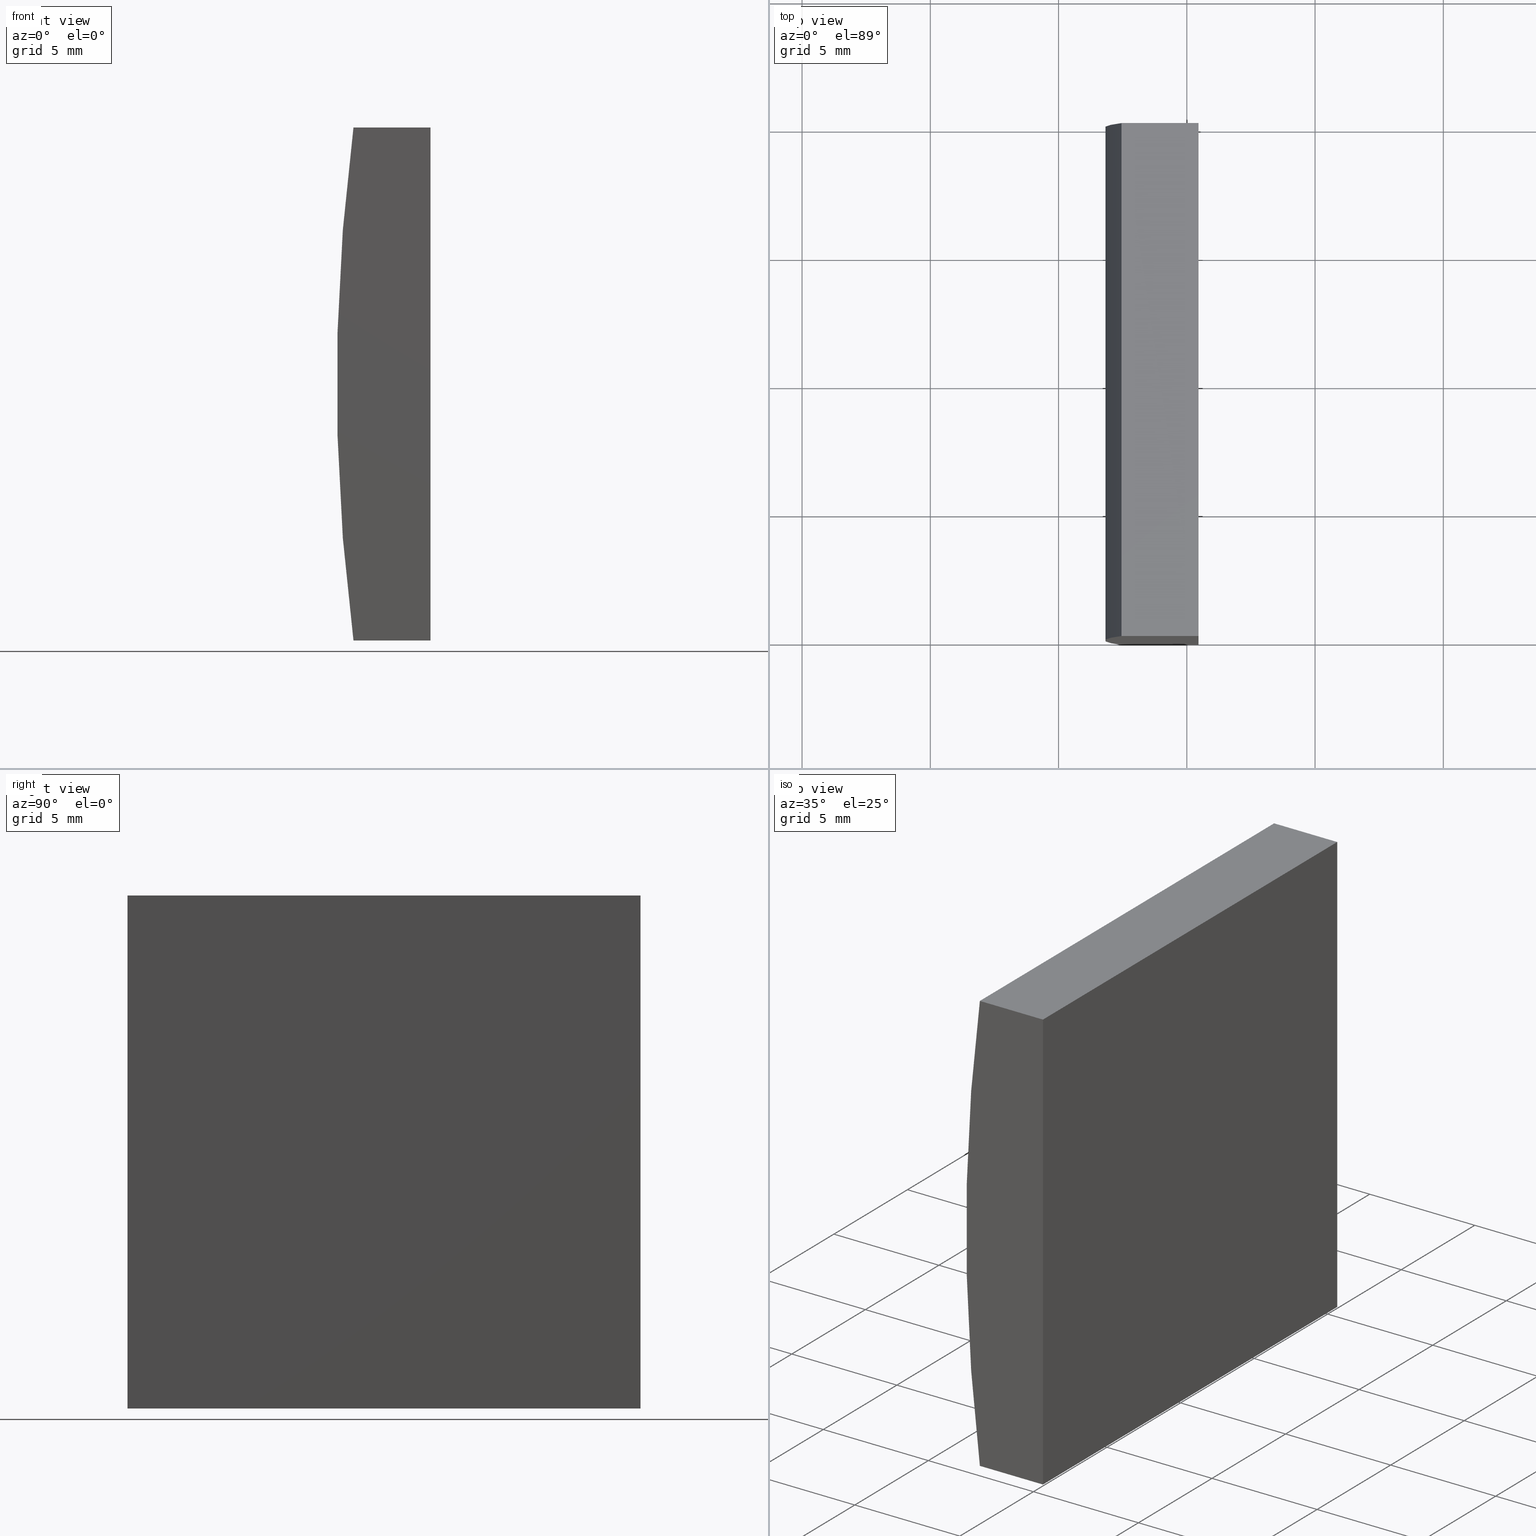
[diagram: canonical four-view strip — front | top / right | iso, engineering-drawing reading convention]
A machine part, canonical four-view strip (front | top / right | iso — engineering-drawing reading convention). The complete STEP part file that produces these views, byte-faithful:
ISO-10303-21;
HEADER;
FILE_DESCRIPTION (( 'STEP AP214' ),
    '1' );
FILE_NAME ('155032.STEP',
    '2019-06-17T06:51:27',
    ( 'user' ),
    ( '΢���й�' ),
    'SwSTEP 2.0',
    'SolidWorks 2016',
    '' );
FILE_SCHEMA (( 'AUTOMOTIVE_DESIGN' ));
ENDSEC;

DATA;
#1 = PRODUCT_RELATED_PRODUCT_CATEGORY ( 'part', '', ( #151 ) ) ;
#2 = VECTOR ( 'NONE', #24, 1000.000000000000000 ) ;
#3 = VECTOR ( 'NONE', #100, 1000.000000000000000 ) ;
#4 = ADVANCED_FACE ( 'NONE', ( #135 ), #42, .F. ) ;
#5 = EDGE_LOOP ( 'NONE', ( #43, #118, #117, #67 ) ) ;
#6 = DIRECTION ( 'NONE',  ( -1.000000000000000000, -0.0000000000000000000, 1.155499382808803800E-015 ) ) ;
#7 = PRODUCT_DEFINITION_FORMATION_WITH_SPECIFIED_SOURCE ( '�κ�', '', #151, .NOT_KNOWN. ) ;
#8 = LINE ( 'NONE', #183, #63 ) ;
#9 = DIRECTION ( 'NONE',  ( -1.000000000000000000, 0.0000000000000000000, -0.0000000000000000000 ) ) ;
#10 = UNCERTAINTY_MEASURE_WITH_UNIT (LENGTH_MEASURE( 1.000000000000000100E-005 ), #108, 'distance_accuracy_value', 'NONE');
#11 = CARTESIAN_POINT ( 'NONE',  ( -69.54479566514874000, 20.00000000000000000, -10.00000000000000400 ) ) ;
#12 = LINE ( 'NONE', #13, #144 ) ;
#13 = CARTESIAN_POINT ( 'NONE',  ( -72.54734763840902200, 0.0000000000000000000, -10.00000000000000000 ) ) ;
#14 = CARTESIAN_POINT ( 'NONE',  ( -72.54734763840902200, 0.0000000000000000000, -10.00000000000000000 ) ) ;
#15 = EDGE_CURVE ( 'NONE', #197, #113, #120, .T. ) ;
#16 = PRESENTATION_STYLE_ASSIGNMENT (( #25 ) ) ;
#17 = CLOSED_SHELL ( 'NONE', ( #168, #4, #20, #97, #115, #95 ) ) ;
#18 = PRODUCT_DEFINITION ( 'δ֪', '', #7, #171 ) ;
#19 =( GEOMETRIC_REPRESENTATION_CONTEXT ( 3 ) GLOBAL_UNCERTAINTY_ASSIGNED_CONTEXT ( ( #52 ) ) GLOBAL_UNIT_ASSIGNED_CONTEXT ( ( #65, #71, #74 ) ) REPRESENTATION_CONTEXT ( 'NONE', 'WORKASPACE' ) );
#20 = ADVANCED_FACE ( 'NONE', ( #188 ), #48, .F. ) ;
#21 = PLANE ( 'NONE',  #98 ) ;
#22 = CARTESIAN_POINT ( 'NONE',  ( -72.54734763840902200, 20.00000000000000000, 10.00000000000000000 ) ) ;
#23 = DIRECTION ( 'NONE',  ( 0.0000000000000000000, 0.0000000000000000000, -1.000000000000000000 ) ) ;
#24 = DIRECTION ( 'NONE',  ( 1.000000000000000000, 0.0000000000000000000, 0.0000000000000000000 ) ) ;
#25 = SURFACE_STYLE_USAGE ( .BOTH. , #203 ) ;
#26 = CARTESIAN_POINT ( 'NONE',  ( -69.54479566514874000, 0.0000000000000000000, 10.00000000000000000 ) ) ;
#27 = AXIS2_PLACEMENT_3D ( 'NONE', #101, #125, #130 ) ;
#28 =( NAMED_UNIT ( * ) SI_UNIT ( $, .STERADIAN. ) SOLID_ANGLE_UNIT ( ) );
#29 = ORIENTED_EDGE ( 'NONE', *, *, #134, .T. ) ;
#30 = ORIENTED_EDGE ( 'NONE', *, *, #164, .F. ) ;
#31 = SHAPE_DEFINITION_REPRESENTATION ( #137, #33 ) ;
#32 = ORIENTED_EDGE ( 'NONE', *, *, #128, .F. ) ;
#33 = ADVANCED_BREP_SHAPE_REPRESENTATION ( '155032', ( #133, #27 ), #19 ) ;
#34 = VERTEX_POINT ( 'NONE', #14 ) ;
#35 = CARTESIAN_POINT ( 'NONE',  ( -72.54734763840902200, 20.00000000000000000, 10.00000000000000000 ) ) ;
#36 = FACE_OUTER_BOUND ( 'NONE', #147, .T. ) ;
#37 =( GEOMETRIC_REPRESENTATION_CONTEXT ( 3 ) GLOBAL_UNCERTAINTY_ASSIGNED_CONTEXT ( ( #10 ) ) GLOBAL_UNIT_ASSIGNED_CONTEXT ( ( #108, #109, #116 ) ) REPRESENTATION_CONTEXT ( 'NONE', 'WORKASPACE' ) );
#38 = ORIENTED_EDGE ( 'NONE', *, *, #94, .F. ) ;
#39 = DIRECTION ( 'NONE',  ( 0.0000000000000000000, -0.0000000000000000000, 1.000000000000000000 ) ) ;
#40 = CARTESIAN_POINT ( 'NONE',  ( -72.54734763840902200, 0.0000000000000000000, 10.00000000000000000 ) ) ;
#41 = MECHANICAL_DESIGN_GEOMETRIC_PRESENTATION_REPRESENTATION (  '', ( #54 ), #37 ) ;
#42 = PLANE ( 'NONE',  #165 ) ;
#43 = ORIENTED_EDGE ( 'NONE', *, *, #164, .T. ) ;
#44 = VERTEX_POINT ( 'NONE', #22 ) ;
#45 = DIRECTION ( 'NONE',  ( -1.000000000000000000, 0.0000000000000000000, 0.0000000000000000000 ) ) ;
#46 = DIRECTION ( 'NONE',  ( 1.000000000000000000, 0.0000000000000000000, 0.0000000000000000000 ) ) ;
#47 = PRESENTATION_STYLE_ASSIGNMENT (( #103 ) ) ;
#48 = PLANE ( 'NONE',  #187 ) ;
#49 = CARTESIAN_POINT ( 'NONE',  ( -72.54734763840902200, 20.00000000000000000, -10.00000000000000000 ) ) ;
#50 = PRESENTATION_LAYER_ASSIGNMENT (  '', '', ( #54 ) ) ;
#51 = DIRECTION ( 'NONE',  ( 0.0000000000000000000, 0.0000000000000000000, 1.000000000000000000 ) ) ;
#52 = UNCERTAINTY_MEASURE_WITH_UNIT (LENGTH_MEASURE( 1.000000000000000100E-005 ), #65, 'distance_accuracy_value', 'NONE');
#53 = COLOUR_RGB ( '',1.000000000000000000, 1.000000000000000000, 1.000000000000000000 ) ;
#54 = STYLED_ITEM ( 'NONE', ( #47 ), #33 ) ;
#55 = FACE_OUTER_BOUND ( 'NONE', #73, .T. ) ;
#56 = CARTESIAN_POINT ( 'NONE',  ( -69.54479566514874000, 20.00000000000000000, -10.00000000000000400 ) ) ;
#57 = FILL_AREA_STYLE_COLOUR ( '', #143 ) ;
#58 = DIRECTION ( 'NONE',  ( -1.000000000000000000, -0.0000000000000000000, 1.155499382808803800E-015 ) ) ;
#59 = CARTESIAN_POINT ( 'NONE',  ( -72.54734763840902200, 0.0000000000000000000, 10.00000000000000000 ) ) ;
#60 = CIRCLE ( 'NONE', #68, 77.54999999999999700 ) ;
#61 = FILL_AREA_STYLE ('',( #75 ) ) ;
#62 = AXIS2_PLACEMENT_3D ( 'NONE', #201, #70, #138 ) ;
#63 = VECTOR ( 'NONE', #110, 1000.000000000000000 ) ;
#64 = CARTESIAN_POINT ( 'NONE',  ( 4.355204334851265500, 0.0000000000000000000, 4.286263797015675000E-017 ) ) ;
#65 =( LENGTH_UNIT ( ) NAMED_UNIT ( * ) SI_UNIT ( .MILLI., .METRE. ) );
#66 = AXIS2_PLACEMENT_3D ( 'NONE', #146, #148, #140 ) ;
#67 = ORIENTED_EDGE ( 'NONE', *, *, #128, .T. ) ;
#68 = AXIS2_PLACEMENT_3D ( 'NONE', #64, #72, #129 ) ;
#69 = LINE ( 'NONE', #194, #186 ) ;
#70 = DIRECTION ( 'NONE',  ( -0.0000000000000000000, -1.000000000000000000, -0.0000000000000000000 ) ) ;
#71 =( NAMED_UNIT ( * ) PLANE_ANGLE_UNIT ( ) SI_UNIT ( $, .RADIAN. ) );
#72 = DIRECTION ( 'NONE',  ( 0.0000000000000000000, 1.000000000000000000, 0.0000000000000000000 ) ) ;
#73 = EDGE_LOOP ( 'NONE', ( #172, #106, #32, #182 ) ) ;
#74 =( NAMED_UNIT ( * ) SI_UNIT ( $, .STERADIAN. ) SOLID_ANGLE_UNIT ( ) );
#75 = FILL_AREA_STYLE_COLOUR ( '', #53 ) ;
#76 = CARTESIAN_POINT ( 'NONE',  ( 4.355204334851265500, 0.0000000000000000000, 4.286263797015675000E-017 ) ) ;
#77 = APPLICATION_PROTOCOL_DEFINITION ( 'draft international standard', 'automotive_design', 1998, #84 ) ;
#78 = UNCERTAINTY_MEASURE_WITH_UNIT (LENGTH_MEASURE( 1.000000000000000100E-005 ), #155, 'distance_accuracy_value', 'NONE');
#79 = VERTEX_POINT ( 'NONE', #92 ) ;
#80 = ORIENTED_EDGE ( 'NONE', *, *, #15, .F. ) ;
#81 = VECTOR ( 'NONE', #6, 1000.000000000000000 ) ;
#82 = VECTOR ( 'NONE', #124, 1000.000000000000000 ) ;
#83 = CARTESIAN_POINT ( 'NONE',  ( -69.54479566514874000, 0.0000000000000000000, -10.00000000000000400 ) ) ;
#84 = APPLICATION_CONTEXT ( 'automotive_design' ) ;
#85 = EDGE_CURVE ( 'NONE', #79, #190, #162, .T. ) ;
#86 = FILL_AREA_STYLE ('',( #57 ) ) ;
#87 = SURFACE_SIDE_STYLE ('',( #149 ) ) ;
#88 = EDGE_LOOP ( 'NONE', ( #139, #195, #99, #122 ) ) ;
#89 = EDGE_LOOP ( 'NONE', ( #29, #167, #132, #96 ) ) ;
#90 = LINE ( 'NONE', #180, #81 ) ;
#91 = ORIENTED_EDGE ( 'NONE', *, *, #169, .T. ) ;
#92 = CARTESIAN_POINT ( 'NONE',  ( -69.54479566514874000, 20.00000000000000000, 10.00000000000000000 ) ) ;
#93 = CIRCLE ( 'NONE', #66, 77.54999999999999700 ) ;
#94 = EDGE_CURVE ( 'NONE', #44, #197, #158, .T. ) ;
#95 = ADVANCED_FACE ( 'NONE', ( #204 ), #156, .F. ) ;
#96 = ORIENTED_EDGE ( 'NONE', *, *, #191, .T. ) ;
#97 = ADVANCED_FACE ( 'NONE', ( #55 ), #21, .F. ) ;
#98 = AXIS2_PLACEMENT_3D ( 'NONE', #153, #107, #173 ) ;
#99 = ORIENTED_EDGE ( 'NONE', *, *, #178, .F. ) ;
#100 = DIRECTION ( 'NONE',  ( -0.0000000000000000000, -0.0000000000000000000, -1.000000000000000000 ) ) ;
#101 = CARTESIAN_POINT ( 'NONE',  ( 0.0000000000000000000, 0.0000000000000000000, 0.0000000000000000000 ) ) ;
#102 = DIRECTION ( 'NONE',  ( -0.0000000000000000000, -1.000000000000000000, -0.0000000000000000000 ) ) ;
#103 = SURFACE_STYLE_USAGE ( .BOTH. , #87 ) ;
#104 = LINE ( 'NONE', #196, #176 ) ;
#105 = ORIENTED_EDGE ( 'NONE', *, *, #159, .T. ) ;
#106 = ORIENTED_EDGE ( 'NONE', *, *, #159, .F. ) ;
#107 = DIRECTION ( 'NONE',  ( 1.155499382808803800E-015, -0.0000000000000000000, 1.000000000000000000 ) ) ;
#108 =( LENGTH_UNIT ( ) NAMED_UNIT ( * ) SI_UNIT ( .MILLI., .METRE. ) );
#109 =( NAMED_UNIT ( * ) PLANE_ANGLE_UNIT ( ) SI_UNIT ( $, .RADIAN. ) );
#110 = DIRECTION ( 'NONE',  ( -0.0000000000000000000, -1.000000000000000000, -0.0000000000000000000 ) ) ;
#111 =( NAMED_UNIT ( * ) PLANE_ANGLE_UNIT ( ) SI_UNIT ( $, .RADIAN. ) );
#112 = SURFACE_STYLE_FILL_AREA ( #61 ) ;
#113 = VERTEX_POINT ( 'NONE', #26 ) ;
#114 = EDGE_CURVE ( 'NONE', #190, #157, #104, .T. ) ;
#115 = ADVANCED_FACE ( 'NONE', ( #121 ), #174, .T. ) ;
#116 =( NAMED_UNIT ( * ) SI_UNIT ( $, .STERADIAN. ) SOLID_ANGLE_UNIT ( ) );
#117 = ORIENTED_EDGE ( 'NONE', *, *, #85, .T. ) ;
#118 = ORIENTED_EDGE ( 'NONE', *, *, #178, .T. ) ;
#119 = VECTOR ( 'NONE', #102, 1000.000000000000000 ) ;
#120 = LINE ( 'NONE', #40, #160 ) ;
#121 = FACE_OUTER_BOUND ( 'NONE', #5, .T. ) ;
#122 = ORIENTED_EDGE ( 'NONE', *, *, #94, .T. ) ;
#123 = CARTESIAN_POINT ( 'NONE',  ( 4.355204334851265500, 20.00000000000000000, 4.286263797015675000E-017 ) ) ;
#124 = DIRECTION ( 'NONE',  ( -0.0000000000000000000, -1.000000000000000000, -0.0000000000000000000 ) ) ;
#125 = DIRECTION ( 'NONE',  ( 0.0000000000000000000, 0.0000000000000000000, 1.000000000000000000 ) ) ;
#126 = LINE ( 'NONE', #181, #2 ) ;
#127 = DIRECTION ( 'NONE',  ( 0.0000000000000000000, -0.0000000000000000000, 1.000000000000000000 ) ) ;
#128 = EDGE_CURVE ( 'NONE', #190, #189, #90, .T. ) ;
#129 = DIRECTION ( 'NONE',  ( 0.0000000000000000000, 0.0000000000000000000, 1.000000000000000000 ) ) ;
#130 = DIRECTION ( 'NONE',  ( 1.000000000000000000, 0.0000000000000000000, 0.0000000000000000000 ) ) ;
#131 = PRODUCT_CONTEXT ( 'NONE', #84, 'mechanical' ) ;
#132 = ORIENTED_EDGE ( 'NONE', *, *, #85, .F. ) ;
#133 = MANIFOLD_SOLID_BREP ( '͹̨-����1', #17 ) ;
#134 = EDGE_CURVE ( 'NONE', #113, #157, #69, .T. ) ;
#135 = FACE_OUTER_BOUND ( 'NONE', #88, .T. ) ;
#136 = MECHANICAL_DESIGN_GEOMETRIC_PRESENTATION_REPRESENTATION (  '', ( #154 ), #200 ) ;
#137 = PRODUCT_DEFINITION_SHAPE ( 'NONE', 'NONE',  #18 ) ;
#138 = DIRECTION ( 'NONE',  ( 0.0000000000000000000, 0.0000000000000000000, -1.000000000000000000 ) ) ;
#139 = ORIENTED_EDGE ( 'NONE', *, *, #15, .T. ) ;
#140 = DIRECTION ( 'NONE',  ( 0.0000000000000000000, 0.0000000000000000000, 1.000000000000000000 ) ) ;
#141 = AXIS2_PLACEMENT_3D ( 'NONE', #123, #193, #127 ) ;
#142 = APPLICATION_CONTEXT ( 'automotive_design' ) ;
#143 = COLOUR_RGB ( '',1.000000000000000000, 1.000000000000000000, 1.000000000000000000 ) ;
#144 = VECTOR ( 'NONE', #58, 1000.000000000000000 ) ;
#145 = APPLICATION_PROTOCOL_DEFINITION ( 'draft international standard', 'automotive_design', 1998, #142 ) ;
#146 = CARTESIAN_POINT ( 'NONE',  ( 4.355204334851265500, 20.00000000000000000, 4.286263797015675000E-017 ) ) ;
#147 = EDGE_LOOP ( 'NONE', ( #91, #38, #30, #105 ) ) ;
#148 = DIRECTION ( 'NONE',  ( 0.0000000000000000000, 1.000000000000000000, 0.0000000000000000000 ) ) ;
#149 = SURFACE_STYLE_FILL_AREA ( #86 ) ;
#150 = AXIS2_PLACEMENT_3D ( 'NONE', #76, #199, #39 ) ;
#151 = PRODUCT ( '155032', '155032', '', ( #131 ) ) ;
#152 = LINE ( 'NONE', #49, #82 ) ;
#153 = CARTESIAN_POINT ( 'NONE',  ( -72.54734763840902200, 20.00000000000000000, -10.00000000000000000 ) ) ;
#154 = STYLED_ITEM ( 'NONE', ( #16 ), #133 ) ;
#155 =( LENGTH_UNIT ( ) NAMED_UNIT ( * ) SI_UNIT ( .MILLI., .METRE. ) );
#156 = PLANE ( 'NONE',  #150 ) ;
#157 = VERTEX_POINT ( 'NONE', #83 ) ;
#158 = LINE ( 'NONE', #170, #119 ) ;
#159 = EDGE_CURVE ( 'NONE', #189, #34, #152, .T. ) ;
#160 = VECTOR ( 'NONE', #46, 1000.000000000000000 ) ;
#161 = ORIENTED_EDGE ( 'NONE', *, *, #192, .F. ) ;
#162 = LINE ( 'NONE', #56, #3 ) ;
#163 = EDGE_LOOP ( 'NONE', ( #177, #161, #179, #80 ) ) ;
#164 = EDGE_CURVE ( 'NONE', #189, #44, #93, .T. ) ;
#165 = AXIS2_PLACEMENT_3D ( 'NONE', #35, #23, #9 ) ;
#166 = CYLINDRICAL_SURFACE ( 'NONE', #62, 77.54999999999999700 ) ;
#167 = ORIENTED_EDGE ( 'NONE', *, *, #114, .F. ) ;
#168 = ADVANCED_FACE ( 'NONE', ( #36 ), #166, .T. ) ;
#169 = EDGE_CURVE ( 'NONE', #34, #197, #60, .T. ) ;
#170 = CARTESIAN_POINT ( 'NONE',  ( -72.54734763840902200, 20.00000000000000000, 10.00000000000000000 ) ) ;
#171 = PRODUCT_DEFINITION_CONTEXT ( 'detailed design', #142, 'design' ) ;
#172 = ORIENTED_EDGE ( 'NONE', *, *, #192, .T. ) ;
#173 = DIRECTION ( 'NONE',  ( 1.000000000000000000, 0.0000000000000000000, -1.155499382808803800E-015 ) ) ;
#174 = PLANE ( 'NONE',  #141 ) ;
#175 = PRESENTATION_LAYER_ASSIGNMENT (  '', '', ( #154 ) ) ;
#176 = VECTOR ( 'NONE', #198, 1000.000000000000000 ) ;
#177 = ORIENTED_EDGE ( 'NONE', *, *, #169, .F. ) ;
#178 = EDGE_CURVE ( 'NONE', #44, #79, #126, .T. ) ;
#179 = ORIENTED_EDGE ( 'NONE', *, *, #134, .F. ) ;
#180 = CARTESIAN_POINT ( 'NONE',  ( -72.54734763840902200, 20.00000000000000000, -10.00000000000000000 ) ) ;
#181 = CARTESIAN_POINT ( 'NONE',  ( -72.54734763840902200, 20.00000000000000000, 10.00000000000000000 ) ) ;
#182 = ORIENTED_EDGE ( 'NONE', *, *, #114, .T. ) ;
#183 = CARTESIAN_POINT ( 'NONE',  ( -69.54479566514874000, 20.00000000000000000, 10.00000000000000000 ) ) ;
#184 = CARTESIAN_POINT ( 'NONE',  ( -72.54734763840902200, 20.00000000000000000, -10.00000000000000000 ) ) ;
#185 = CARTESIAN_POINT ( 'NONE',  ( -69.54479566514874000, 20.00000000000000000, -10.00000000000000400 ) ) ;
#186 = VECTOR ( 'NONE', #202, 1000.000000000000000 ) ;
#187 = AXIS2_PLACEMENT_3D ( 'NONE', #11, #45, #51 ) ;
#188 = FACE_OUTER_BOUND ( 'NONE', #89, .T. ) ;
#189 = VERTEX_POINT ( 'NONE', #184 ) ;
#190 = VERTEX_POINT ( 'NONE', #185 ) ;
#191 = EDGE_CURVE ( 'NONE', #79, #113, #8, .T. ) ;
#192 = EDGE_CURVE ( 'NONE', #157, #34, #12, .T. ) ;
#193 = DIRECTION ( 'NONE',  ( 0.0000000000000000000, 1.000000000000000000, 0.0000000000000000000 ) ) ;
#194 = CARTESIAN_POINT ( 'NONE',  ( -69.54479566514874000, 0.0000000000000000000, -10.00000000000000400 ) ) ;
#195 = ORIENTED_EDGE ( 'NONE', *, *, #191, .F. ) ;
#196 = CARTESIAN_POINT ( 'NONE',  ( -69.54479566514874000, 20.00000000000000000, -10.00000000000000400 ) ) ;
#197 = VERTEX_POINT ( 'NONE', #59 ) ;
#198 = DIRECTION ( 'NONE',  ( -0.0000000000000000000, -1.000000000000000000, -0.0000000000000000000 ) ) ;
#199 = DIRECTION ( 'NONE',  ( 0.0000000000000000000, 1.000000000000000000, 0.0000000000000000000 ) ) ;
#200 =( GEOMETRIC_REPRESENTATION_CONTEXT ( 3 ) GLOBAL_UNCERTAINTY_ASSIGNED_CONTEXT ( ( #78 ) ) GLOBAL_UNIT_ASSIGNED_CONTEXT ( ( #155, #111, #28 ) ) REPRESENTATION_CONTEXT ( 'NONE', 'WORKASPACE' ) );
#201 = CARTESIAN_POINT ( 'NONE',  ( 4.355204334851265500, 20.00000000000000000, 4.286263797015675000E-017 ) ) ;
#202 = DIRECTION ( 'NONE',  ( -0.0000000000000000000, -0.0000000000000000000, -1.000000000000000000 ) ) ;
#203 = SURFACE_SIDE_STYLE ('',( #112 ) ) ;
#204 = FACE_OUTER_BOUND ( 'NONE', #163, .T. ) ;
ENDSEC;
END-ISO-10303-21;
